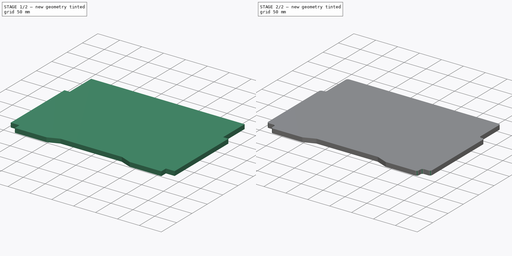
[diagram: build sequence overview — one tinted view per stage of 2, left to right]
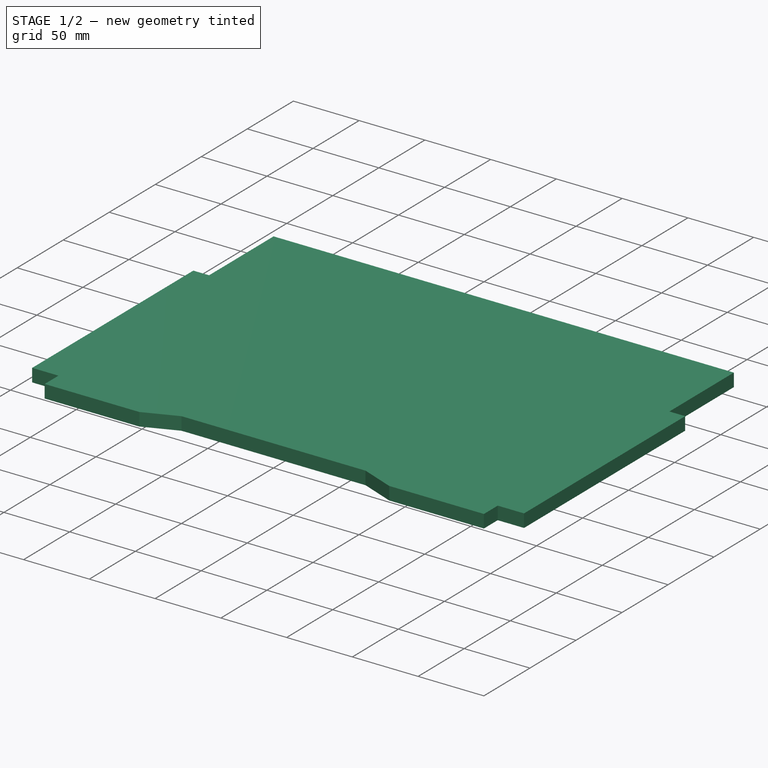
[diagram: stage 1 of 2 — iso view after this stage's code; geometry added in this stage tinted green]
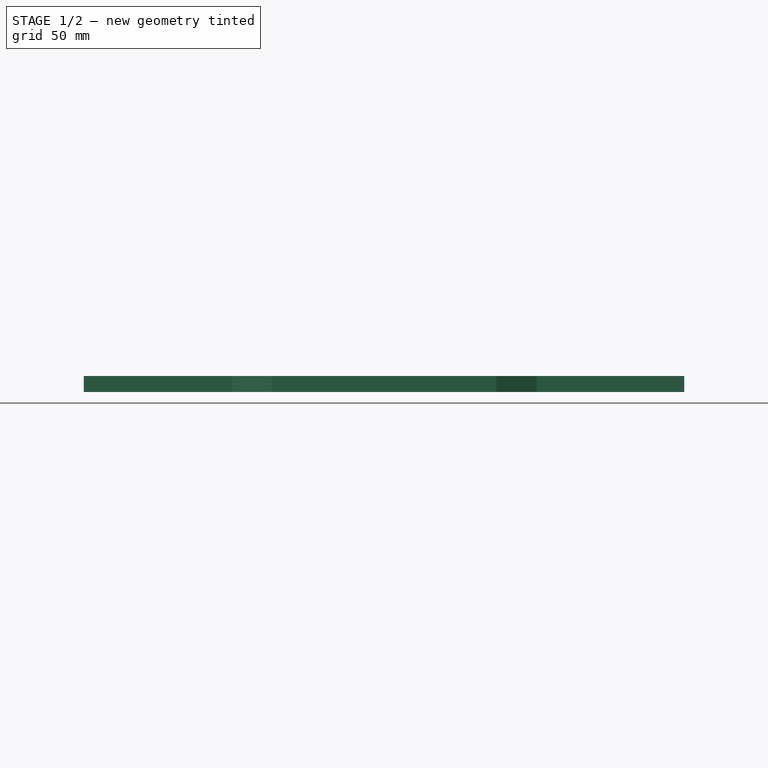
[diagram: stage 1 of 2 — front view after this stage's code; geometry added in this stage tinted green]
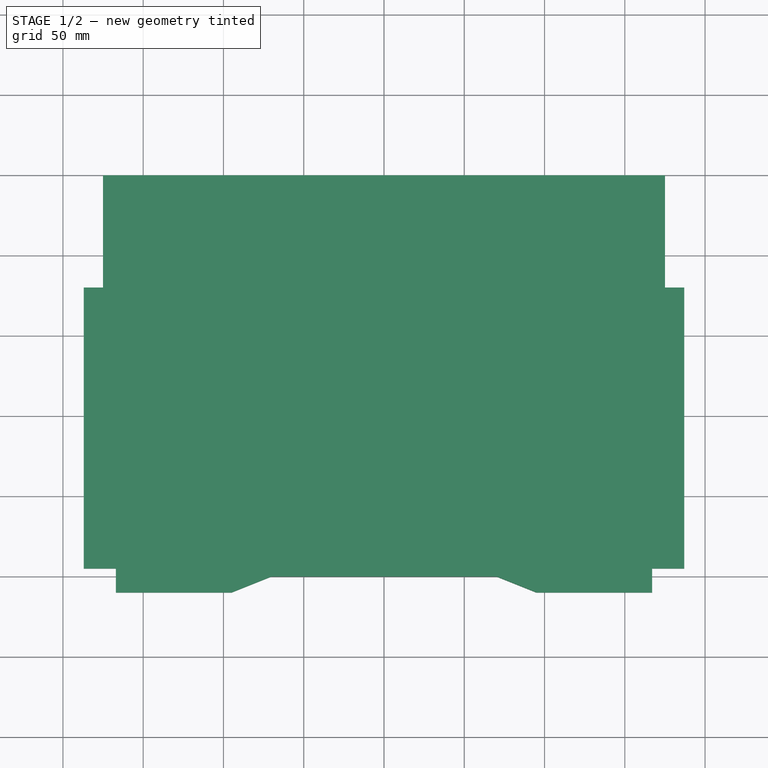
[diagram: stage 1 of 2 — top view after this stage's code; geometry added in this stage tinted green]
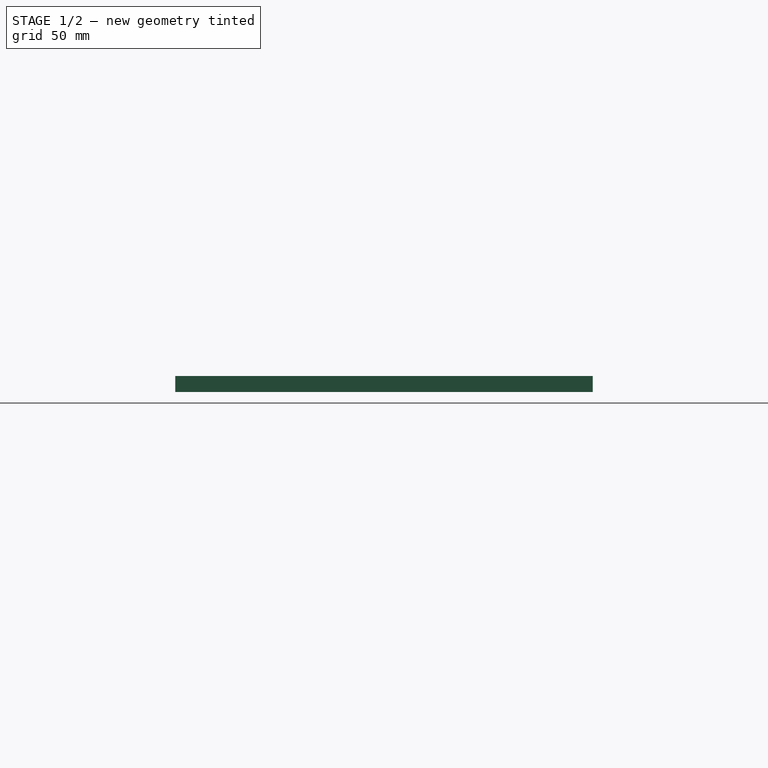
[diagram: stage 1 of 2 — right view after this stage's code; geometry added in this stage tinted green]
FCSTD DOCUMENT  (FreeCAD 0.19R22670 (Git))
Label: Systainer
License: All rights reserved
LicenseURL: http://en.wikipedia.org/wiki/All_rights_reserved
objects: Sketcher::SketchObject×1, PartDesign::Pad×1, PartDesign::Fillet×1, PartDesign::Body×1
note: 6 computed .brp shape members not serialized (recipe doc carries the construction recipe); baked Part::Feature solids carry a one-line shape summary decoded from their .brp

FEATURE [Sketcher::SketchObject] Sketch
  MapMode = 5
  Support = -> [XY_Plane]
  sketch-geometry (18):
    g0: LineSegment StartX=0 StartY=0 StartZ=0 EndX=-70 EndY=0 EndZ=0
    g1: LineSegment StartX=-70 StartY=0 StartZ=0 EndX=-95 EndY=-10 EndZ=0
    g2: LineSegment StartX=-95 StartY=-10 StartZ=0 EndX=-167 EndY=-10 EndZ=0
    g3: LineSegment StartX=-167 StartY=-10 StartZ=0 EndX=-167 EndY=5 EndZ=0
    g4: LineSegment StartX=-167 StartY=5 StartZ=0 EndX=-187 EndY=5 EndZ=0
    g5: LineSegment StartX=-187 StartY=5 StartZ=0 EndX=-187 EndY=180 EndZ=0
    g6: LineSegment StartX=-187 StartY=180 StartZ=0 EndX=-175 EndY=180 EndZ=0
    g7: LineSegment StartX=-175 StartY=180 StartZ=0 EndX=-175 EndY=250 EndZ=0
    g8: LineSegment StartX=-175 StartY=250 StartZ=0 EndX=0 EndY=250 EndZ=0
    g9: LineSegment StartX=0 StartY=0 StartZ=0 EndX=70 EndY=0 EndZ=0
    g10: LineSegment StartX=70 StartY=0 StartZ=0 EndX=95 EndY=-10 EndZ=0
    g11: LineSegment StartX=95 StartY=-10 StartZ=0 EndX=167 EndY=-10 EndZ=0
    g12: LineSegment StartX=167 StartY=-10 StartZ=0 EndX=167 EndY=5 EndZ=0
    g13: LineSegment StartX=167 StartY=5 StartZ=0 EndX=187 EndY=5 EndZ=0
    g14: LineSegment StartX=187 StartY=5 StartZ=0 EndX=187 EndY=180 EndZ=0
    g15: LineSegment StartX=187 StartY=180 StartZ=0 EndX=175 EndY=180 EndZ=0
    g16: LineSegment StartX=175 StartY=180 StartZ=0 EndX=175 EndY=250 EndZ=0
    g17: LineSegment StartX=175 StartY=250 StartZ=0 EndX=0 EndY=250 EndZ=0
  constraints (53):
    c: Coincident(g0,g-1)
    c: PointOnObject(g0,g-1)
    c: Coincident(g1,g0)
    c: Coincident(g2,g1)
    c: Horizontal(g2)
    c: Coincident(g3,g2)
    c: Vertical(g3)
    c: Coincident(g4,g3)
    c: Horizontal(g4)
    c: Coincident(g5,g4)
    c: Vertical(g5)
    c: Coincident(g6,g5)
    c: Coincident(g7,g6)
    c: Vertical(g7)
    c: Coincident(g8,g7)
    c: PointOnObject(g8,g-2)
    c: Horizontal(g8)
    c: DistanceX(g8,g8) = 175
    c: Horizontal(g6)
    c: DistanceX(g6,g6) = 12
    c: DistanceX(g4,g4) = 20
    c: DistanceX(g2,g2) = 72
    c: DistanceX(g0,g0) = 70
    c: DistanceY(g7,g7) = 70
    c: DistanceY(g3,g3) = 15
    c: DistanceY(g5,g5) = 175
    c: DistanceY(g1,g0) = 10
    c: Coincident(g10,g9)
    c: Coincident(g11,g10)
    c: Horizontal(g11)
    c: Coincident(g12,g11)
    c: Vertical(g12)
    c: Coincident(g13,g12)
    c: Horizontal(g13)
    c: Coincident(g14,g13)
    c: Vertical(g14)
    c: Coincident(g15,g14)
    c: Coincident(g16,g15)
    c: Vertical(g16)
    c: Coincident(g17,g16)
    c: Horizontal(g17)
    c: Horizontal(g15)
    c: Equal(g8,g17)
    c: Equal(g16,g7)
    c: Coincident(g8,g17)
    c: Equal(g14,g5)
    c: Equal(g0,g9)
    c: Equal(g11,g2)
    c: Coincident(g0,g9)
    c: Horizontal(g9)
    c: Equal(g15,g6)
    c: Equal(g4,g13)
    c: Equal(g12,g3)
FEATURE [PartDesign::Pad] Pad
  Direction = (1,1,1)
  Length = 10
  Length2 = 100
  Profile = -> Sketch
  Type = 0
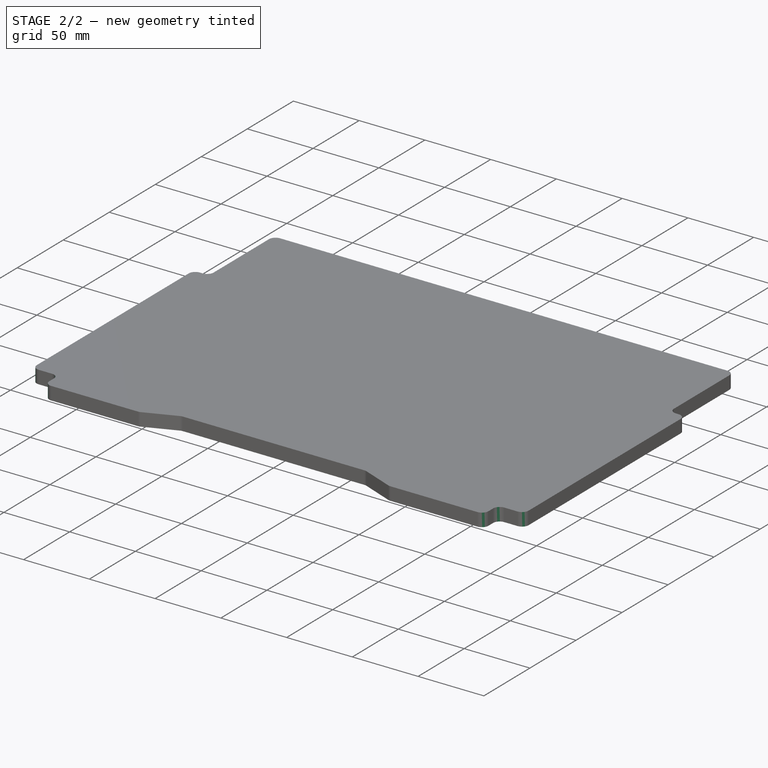
[diagram: stage 2 of 2 — iso view after this stage's code; geometry added in this stage tinted green]
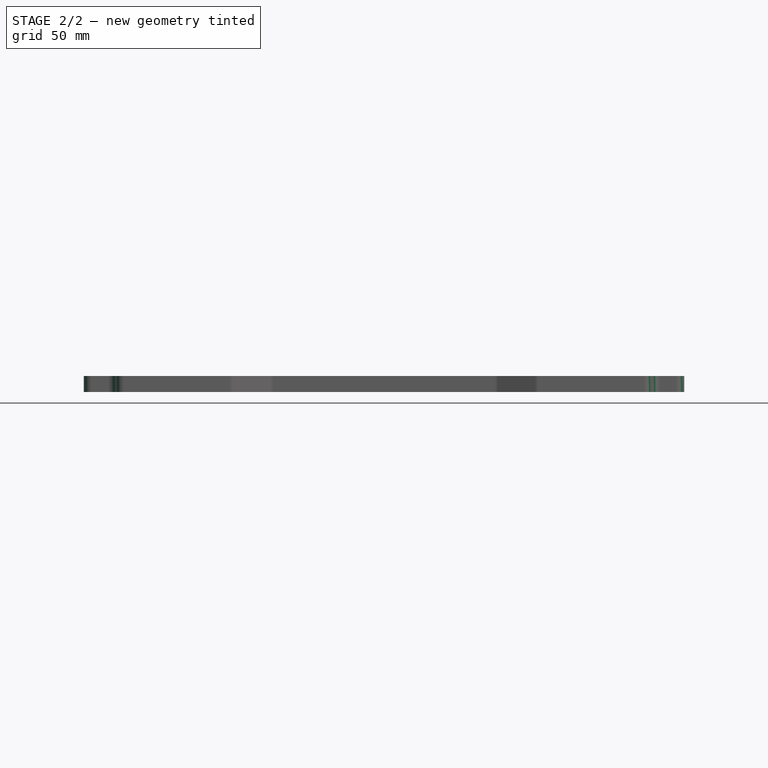
[diagram: stage 2 of 2 — front view after this stage's code; geometry added in this stage tinted green]
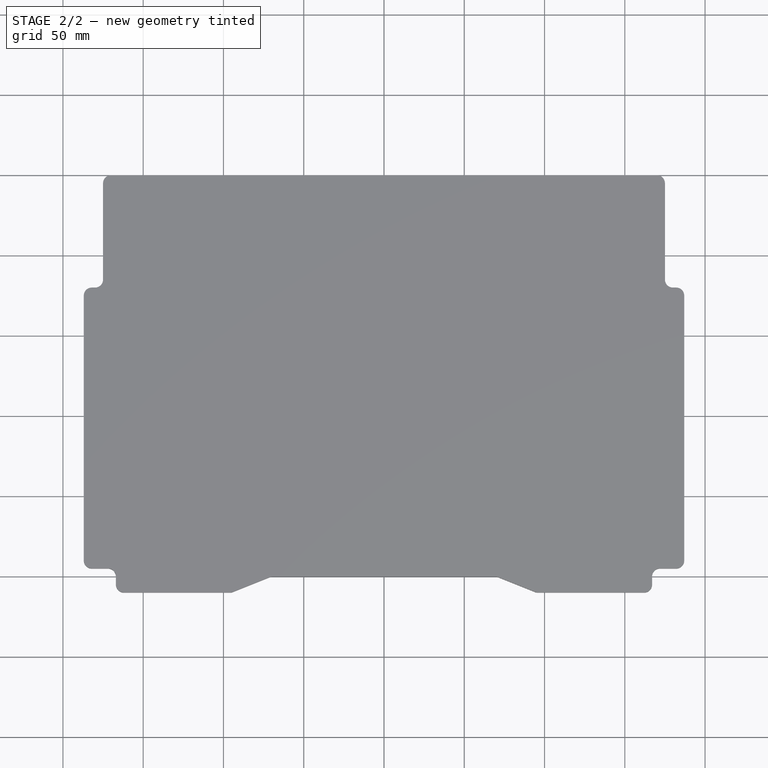
[diagram: stage 2 of 2 — top view after this stage's code; geometry added in this stage tinted green]
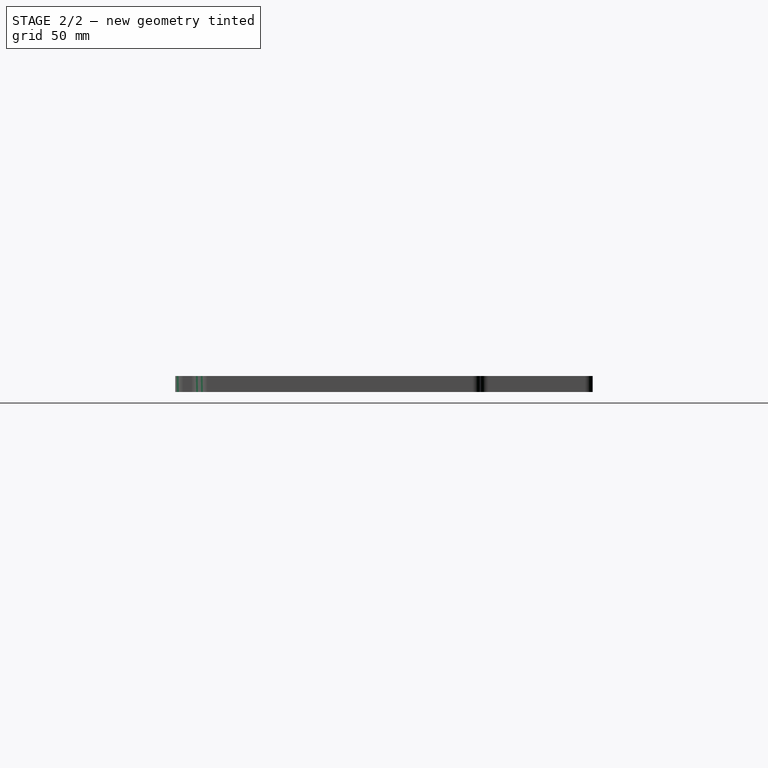
[diagram: stage 2 of 2 — right view after this stage's code; geometry added in this stage tinted green]
FEATURE [PartDesign::Fillet] Fillet
  Base = -> Pad [Edge2,Edge50,Edge47,Edge44,Edge41,Edge38,Edge35,Edge29,Edge32,Edge23,Edge20,Edge17,Edge14,Edge11,Edge8,Edge5]
  BaseFeature = -> Pad
  Radius = 5
  SupportTransform = false
FEATURE [PartDesign::Body] Body
  Group = -> [Sketch,Pad,Fillet]
  Origin = -> Origin
  Tip = -> Fillet
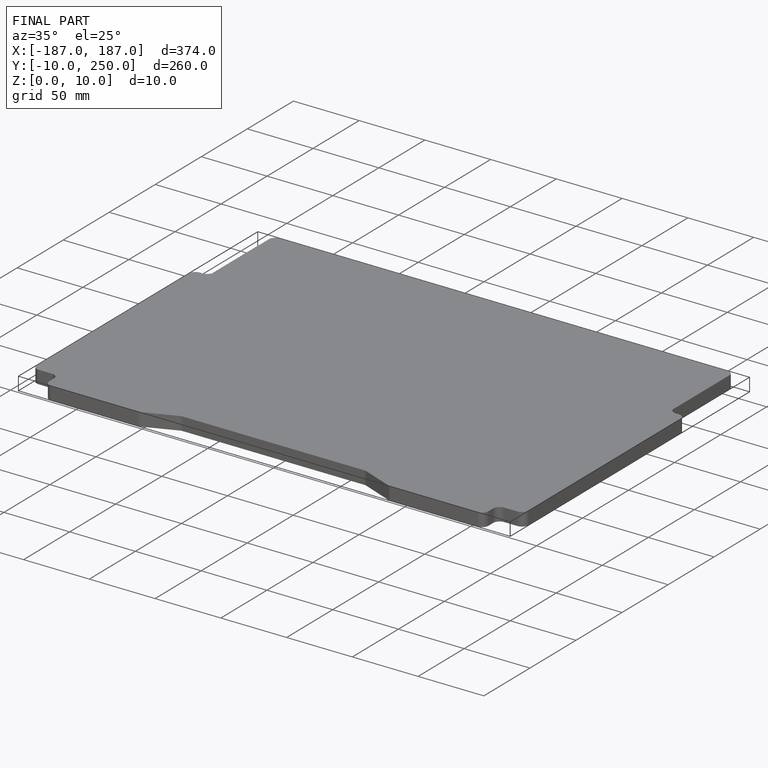
[diagram: finished part — iso view with bounding-box wireframe]
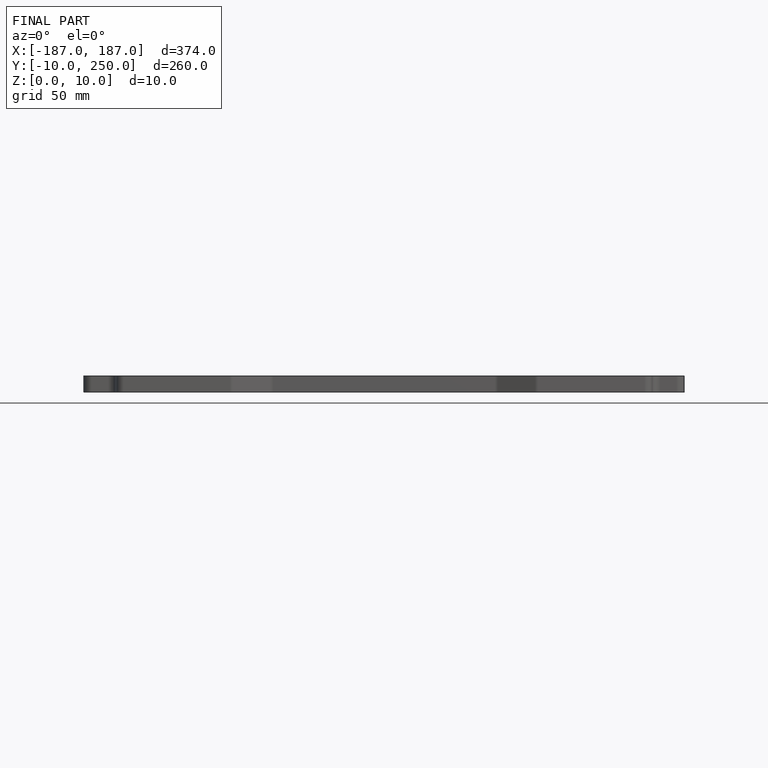
[diagram: finished part — front view with bounding-box wireframe]
